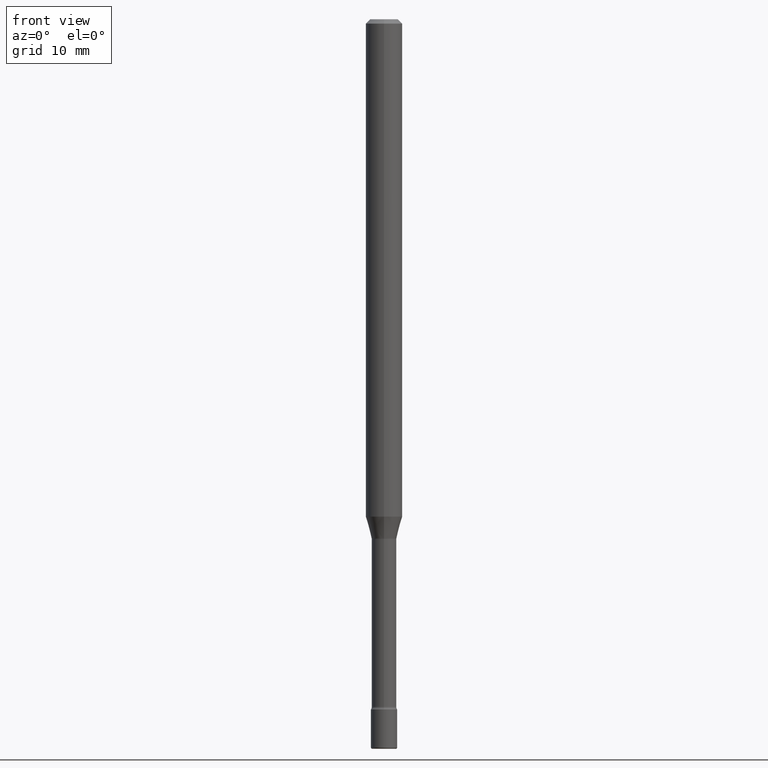
[diagram: clean part render]
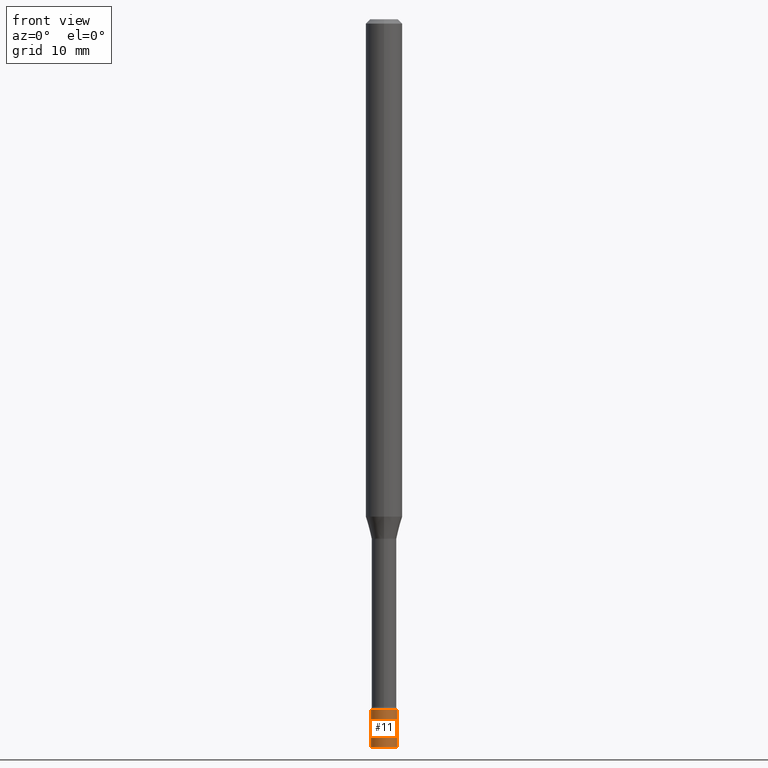
[diagram: same view with one face highlighted and labeled with its STEP entity id]
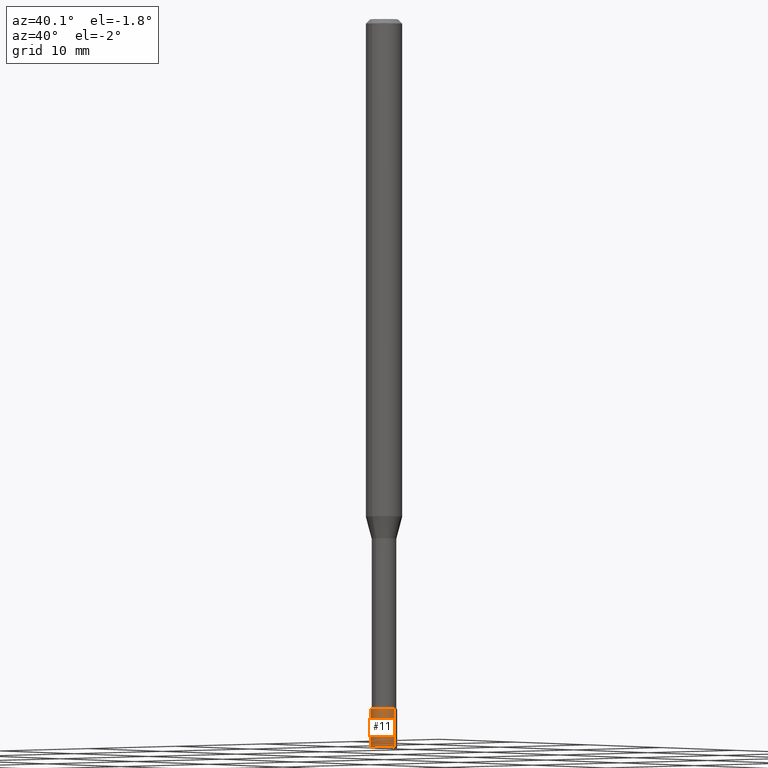
[diagram: same view with one face highlighted and labeled with its STEP entity id]
A machine part, front view. The second image highlights one B-rep face of the part: STEP entity #11.
A second angle (auxiliary view) of the same face is appended — the face is thin or edge-on in the first view.
In plain terms, the highlighted cylindrical surface (edge-blend (fillet) strip) has radius 1.143 mm, axis along (-0, 0, 1).
Its self-contained STEP definition (entity closure, byte-faithful):
#5 = DIRECTION ( 'NONE',  ( -2.445468806185136597E-29, 3.491481338843145583E-15, 1.000000000000000000 ) ) ;
#11 = ADVANCED_FACE ( 'NONE', ( #146 ), #233, .T. ) ;
#18 = ORIENTED_EDGE ( 'NONE', *, *, #204, .T. ) ;
#48 = CARTESIAN_POINT ( 'NONE',  ( -0.04499999999999999833, -8.164555422296798820E-15, -2.365000000000000213 ) ) ;
#68 = VERTEX_POINT ( 'NONE', #48 ) ;
#79 = VERTEX_POINT ( 'NONE', #150 ) ;
#97 = DIRECTION ( 'NONE',  ( 1.000000000000000000, -6.982962677686267499E-15, 0.000000000000000000 ) ) ;
#99 = ORIENTED_EDGE ( 'NONE', *, *, #380, .F. ) ;
#127 = VERTEX_POINT ( 'NONE', #332 ) ;
#134 = DIRECTION ( 'NONE',  ( 1.000000000000000000, -6.982962677686269077E-15, 0.000000000000000000 ) ) ;
#146 = FACE_OUTER_BOUND ( 'NONE', #172, .T. ) ;
#150 = CARTESIAN_POINT ( 'NONE',  ( 0.04499999999999989425, -9.025479260909530016E-15, -2.495000000000000107 ) ) ;
#166 = CARTESIAN_POINT ( 'NONE',  ( 0.04499999999999999833, -3.142333204958819823E-16, 2.194279549108170967E-30 ) ) ;
#172 = EDGE_LOOP ( 'NONE', ( #99, #416, #18, #315 ) ) ;
#204 = EDGE_CURVE ( 'NONE', #79, #127, #254, .T. ) ;
#219 = LINE ( 'NONE', #396, #378 ) ;
#233 = CYLINDRICAL_SURFACE ( 'NONE', #529, 0.04499999999999999833 ) ;
#254 = LINE ( 'NONE', #166, #550 ) ;
#277 = CARTESIAN_POINT ( 'NONE',  ( 0.000000000000000000, 0.000000000000000000, 0.000000000000000000 ) ) ;
#315 = ORIENTED_EDGE ( 'NONE', *, *, #326, .F. ) ;
#326 = EDGE_CURVE ( 'NONE', #68, #127, #567, .T. ) ;
#332 = CARTESIAN_POINT ( 'NONE',  ( 0.04499999999999999833, -8.571586686859921733E-15, -2.365000000000000213 ) ) ;
#354 = CARTESIAN_POINT ( 'NONE',  ( 5.783533726627847872E-29, -8.257353366364040046E-15, -2.365000000000000213 ) ) ;
#365 = CARTESIAN_POINT ( 'NONE',  ( -0.04499999999999989425, -8.391501709321603750E-15, -2.495000000000000107 ) ) ;
#375 = DIRECTION ( 'NONE',  ( -2.445468806185136877E-29, 3.491481338843145188E-15, 1.000000000000000000 ) ) ;
#378 = VECTOR ( 'NONE', #446, 39.37007874015748143 ) ;
#380 = EDGE_CURVE ( 'NONE', #427, #68, #219, .T. ) ;
#396 = CARTESIAN_POINT ( 'NONE',  ( -0.04499999999999999833, 3.197442310920450718E-16, -2.213520790614707560E-30 ) ) ;
#408 = DIRECTION ( 'NONE',  ( 1.000000000000000000, -6.982962677686266711E-15, 4.876176775795935793E-29 ) ) ;
#416 = ORIENTED_EDGE ( 'NONE', *, *, #488, .T. ) ;
#425 = CIRCLE ( 'NONE', #444, 0.04500000000000000527 ) ;
#427 = VERTEX_POINT ( 'NONE', #365 ) ;
#443 = DIRECTION ( 'NONE',  ( -2.445468806185136597E-29, 3.491481338843145583E-15, 1.000000000000000000 ) ) ;
#444 = AXIS2_PLACEMENT_3D ( 'NONE', #496, #5, #97 ) ;
#446 = DIRECTION ( 'NONE',  ( -2.445468806185136877E-29, 3.491481338843145188E-15, 1.000000000000000000 ) ) ;
#488 = EDGE_CURVE ( 'NONE', #427, #79, #425, .T. ) ;
#489 = DIRECTION ( 'NONE',  ( -2.445468806185136597E-29, 3.491481338843145583E-15, 1.000000000000000000 ) ) ;
#496 = CARTESIAN_POINT ( 'NONE',  ( 6.101444671431915719E-29, -8.711245940413648329E-15, -2.495000000000000107 ) ) ;
#529 = AXIS2_PLACEMENT_3D ( 'NONE', #277, #443, #408 ) ;
#541 = AXIS2_PLACEMENT_3D ( 'NONE', #354, #489, #134 ) ;
#550 = VECTOR ( 'NONE', #375, 39.37007874015748143 ) ;
#567 = CIRCLE ( 'NONE', #541, 0.04499999999999999833 ) ;